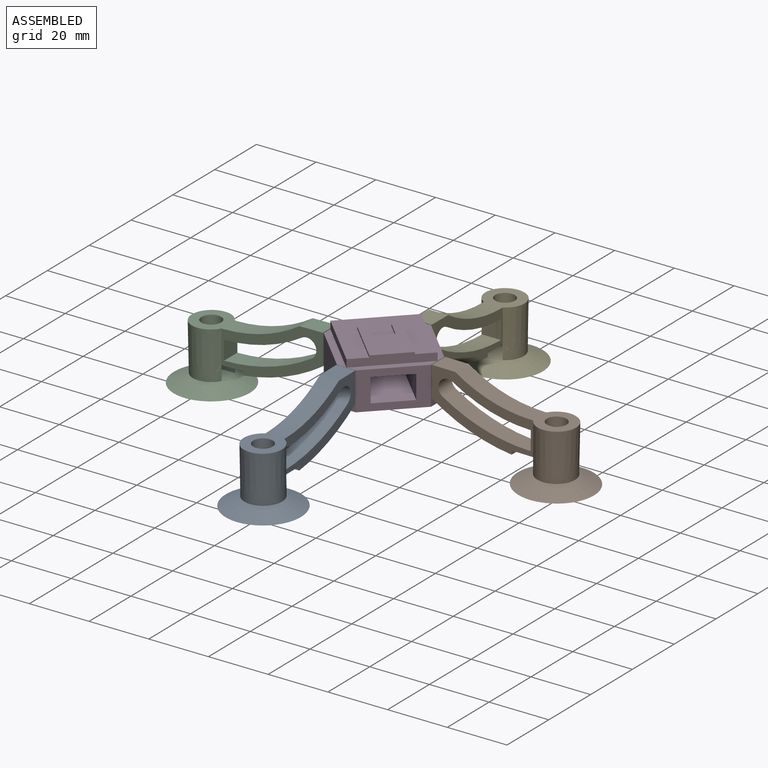
[diagram: assembled view]
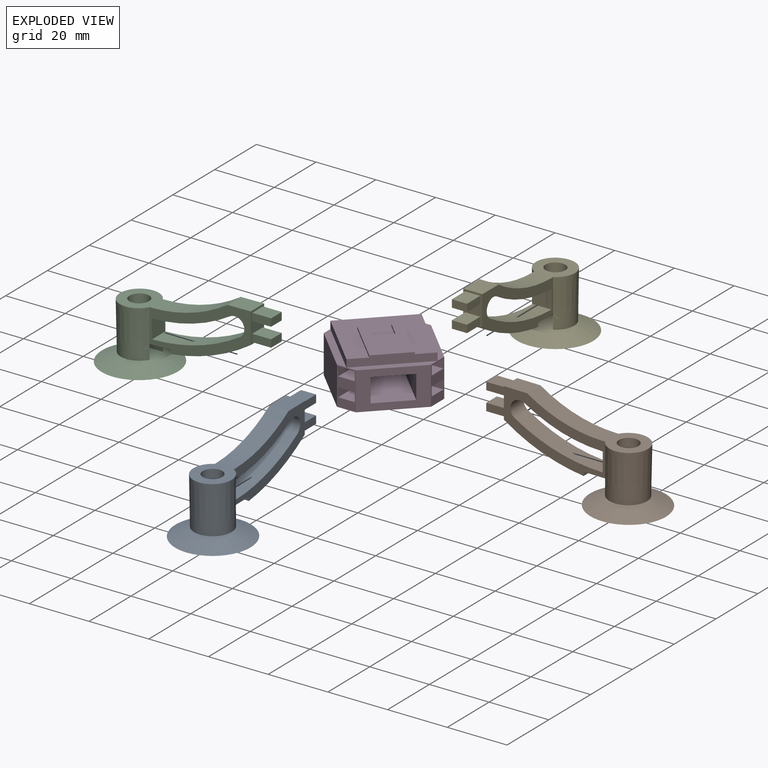
[diagram: exploded view]
GUIDED TOUR — MATED ASSEMBLY (Onshape document 2c69b0f62aaf6b4f8146618b, AutoMate assembly 2c69b0f62aaf6b4f8146618b_2bfa650f6eb8ac7df8bd2d8d_07a30dfd5c1788adb1af83a7_default)

This assembly has 5 components, labeled P0..P4 below (a component is one placed occurrence of a part; the same part can appear more than once), held together by 4 mates. A mate is a constraint between two components; its type names the relative motion it leaves free:
  FASTENED — locks the two components together rigidly (no relative motion).
Axis/direction vectors are unit vectors and 'through' points are millimeter coordinates, both in the assembly's world frame.

MATES
  1. FASTENED "Fastened 2": P4 <-> P3, direction (0.000, -1.000, 0.000) through (0.14, 12.86, 2.91) mm
  2. FASTENED "Fastened 4": P0 <-> P3, direction (0.000, 1.000, 0.000) through (0.01, -10.87, 2.91) mm
  3. FASTENED "Fastened 3": P1 <-> P3, direction (-1.000, 0.000, 0.000) through (11.94, 1.06, 2.91) mm
  4. FASTENED "Fastened 1": P2 <-> P3, direction (1.000, 0.000, 0.000) through (-11.79, 0.93, 2.91) mm

ASSEMBLY ORDER
  1. P3 — the base component [order heuristic]
  2. P0 [order heuristic]
  3. P1 [order heuristic]
  4. P2 [order heuristic]
  5. P4 [order heuristic]
Order-tag legend:
  [order heuristic] — this assembly is geometrically interlocked (no collision-free removal order exists), so components are listed in mate-graph order; insertion feasibility is not verified.

Of the 5 components, 1 carries the full construction recipe — the FeatureScript program that regenerates the part's solid from scratch; the rest are supplied as boundary geometry only.
Each toured component is shown spotlighted twice — in the assembled view, then in the exploded view, where a leader line traces a displaced component back to its assembled socket (saturated green if recipe-attached, orange if geometry-only; every other component desaturated gray) — followed by its recipe or geometry summary and the mates that hold it.
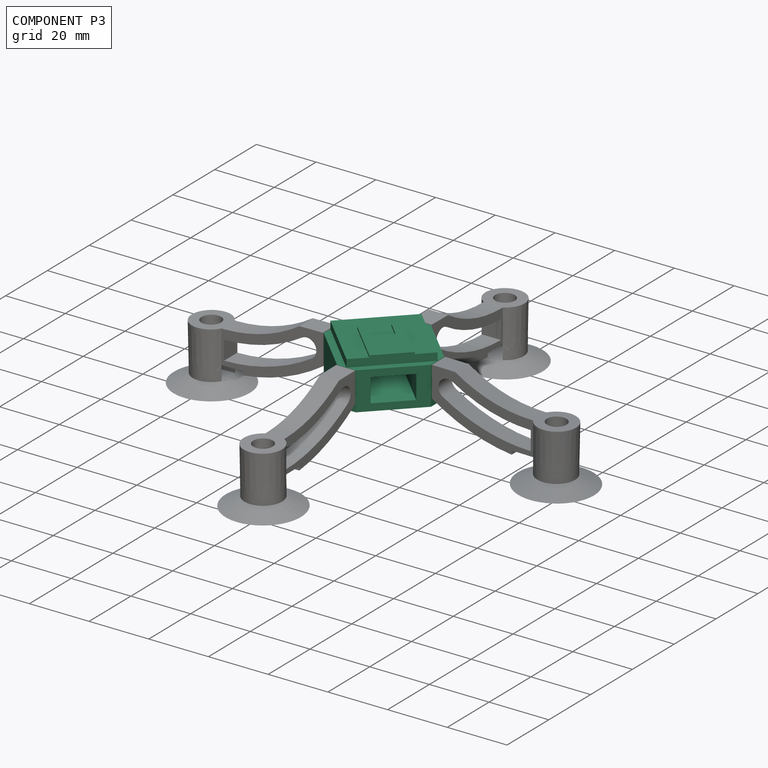
[diagram: component P3 — assembled]
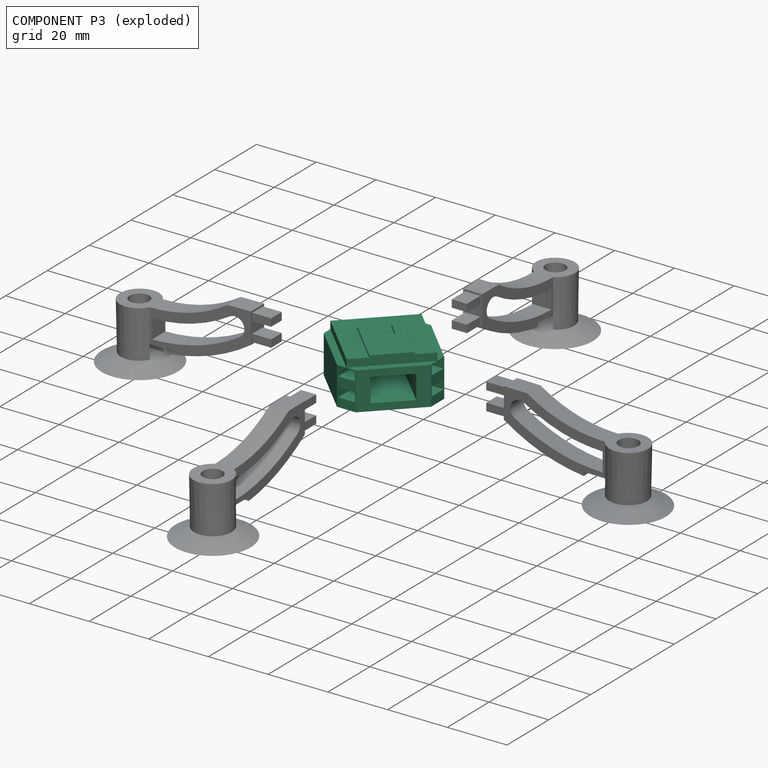
[diagram: component P3 — exploded]
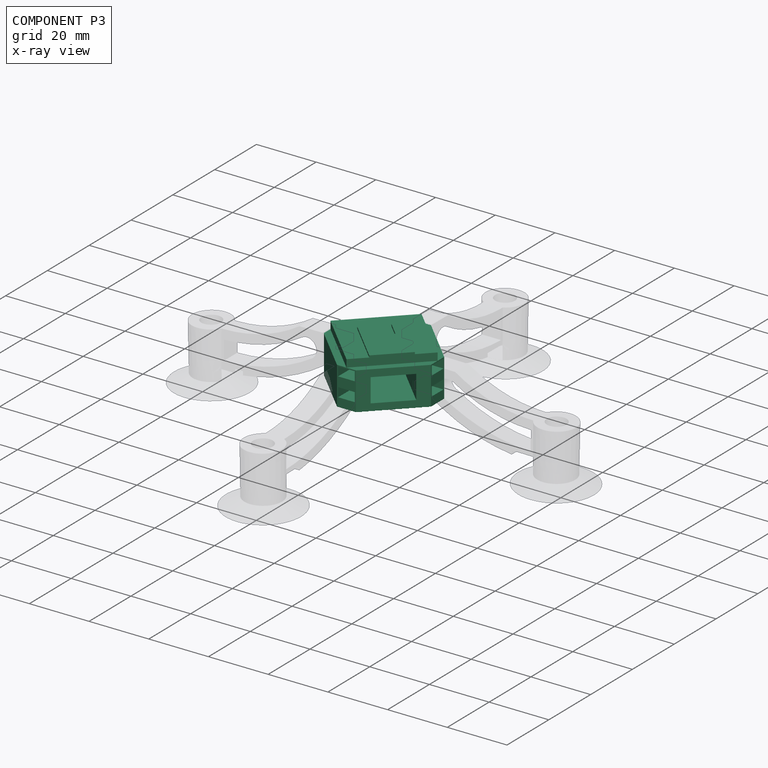
[diagram: component P3 — x-ray view]
COMPONENT P3 — recipe-attached (CADFS 00175159, mesh-verified: the recipe's output STEP matches this component's geometry to below the mesh-comparison resolution (tessellation chordal tolerance ~0.0798 mm)).
Held by: FASTENED mate "Fastened 2" to P4; FASTENED mate "Fastened 4" to P0; FASTENED mate "Fastened 3" to P1; FASTENED mate "Fastened 1" to P2.
Construction recipe (FeatureScript — the CAD program that rebuilds this solid; sketch coordinates are in the units given by the * unit suffixes, e.g. mm):

FeatureScript 1511;
import(path : "onshape/std/geometry.fs", version : "1511.0");
import(path : "onshape/std/common.fs", version : "1511.0");
const mm = millimeter;
const VERTEX = EntityType.VERTEX;
const EDGE = EntityType.EDGE;
const FACE = EntityType.FACE;
const BODY = EntityType.BODY;
function v(x, y){return vector(x, y);}
function OD(order){return orderDisambiguation(order);}
function OSD(set){return originalSetDisambiguation(set);}
function TD(topology){return topologyDisambiguation(topology);}
function TDD(query){return trueDependencyDisambiguation(query);}
function sQuery(a, b, c) {return sketchEntityQuery(a, b, c);}

annotation { "Feature Type Name" : "Feature", "Feature Type Description" : "" }
export const myFeature = defineFeature(function(context is Context, id is Id, definition is map)
    precondition{}
    {
        {
            var Q0;
            Q0=qCreatedBy(makeId("Top.planeOp"),FACE);
            var sketch = newSketch(context, id + "F0", { "sketchPlane" : qUnion([Q0])});
            skLineSegment(sketch, "E0.bottom", {"start": v(-17.96, 17.96) * mm, "end": v(17.96, 17.96) * mm});
            skLineSegment(sketch, "E0.top", {"start": v(-17.96, -17.96) * mm, "end": v(17.96, -17.96) * mm});
            skLineSegment(sketch, "E0.left", {"start": v(-17.96, 17.96) * mm, "end": v(-17.96, -17.96) * mm});
            skLineSegment(sketch, "E0.right", {"start": v(17.96, 17.96) * mm, "end": v(17.96, -17.96) * mm});
            skPoint(sketch, "E0.middle", {"position": v(0, 0) * mm});
            skPoint(sketch, "E1", {"position": v(-17.96, 3.17) * mm});
            skPoint(sketch, "E2", {"position": v(-17.96, -3.18) * mm});
            skPoint(sketch, "E3", {"position": v(-17.96, 0) * mm});
            skPoint(sketch, "E4", {"position": v(0, 17.96) * mm});
            skPoint(sketch, "E5", {"position": v(-3.17, 17.96) * mm});
            skPoint(sketch, "E6", {"position": v(3.18, 17.96) * mm});
            skPoint(sketch, "E7", {"position": v(17.96, 0) * mm});
            skPoint(sketch, "E8", {"position": v(17.96, 3.17) * mm});
            skPoint(sketch, "E9", {"position": v(17.96, -3.18) * mm});
            skPoint(sketch, "E10", {"position": v(0, -17.96) * mm});
            skPoint(sketch, "E11", {"position": v(3.18, -17.96) * mm});
            skPoint(sketch, "E12", {"position": v(-3.17, -17.96) * mm});
            skLineSegment(sketch, "E13", {"start": v(-17.96, 3.17) * mm, "end": v(-3.17, 17.96) * mm});
            skLineSegment(sketch, "E14", {"start": v(3.18, 17.96) * mm, "end": v(17.96, 3.17) * mm});
            skLineSegment(sketch, "E15", {"start": v(17.96, -3.18) * mm, "end": v(3.18, -17.96) * mm});
            skLineSegment(sketch, "E16", {"start": v(-17.96, -3.18) * mm, "end": v(-3.17, -17.96) * mm});
            skLineSegment(sketch, "E17", {"start": v(0, 0) * mm, "end": v(-8.98, 8.98) * mm});
            skLineSegment(sketch, "E18", {"start": v(0, 0) * mm, "end": v(8.98, 8.98) * mm});
            skLineSegment(sketch, "E19", {"start": v(0, 0) * mm, "end": v(8.98, -8.98) * mm});
            skLineSegment(sketch, "E20", {"start": v(0, 0) * mm, "end": v(-8.98, -8.98) * mm});
            skLineSegment(sketch, "E21", {"start": v(-8.98, -8.98) * mm, "end": v(0, -17.96) * mm});
            skLineSegment(sketch, "E22", {"start": v(0, -17.96) * mm, "end": v(8.98, -8.98) * mm});
            skLineSegment(sketch, "E23", {"start": v(-8.98, 8.98) * mm, "end": v(-17.96, 0) * mm});
            skLineSegment(sketch, "E24", {"start": v(-17.96, 0) * mm, "end": v(-8.98, -8.98) * mm});
            skLineSegment(sketch, "E25", {"start": v(-8.98, 8.98) * mm, "end": v(0, 17.96) * mm});
            skLineSegment(sketch, "E26", {"start": v(0, 17.96) * mm, "end": v(8.98, 8.98) * mm});
            skLineSegment(sketch, "E27", {"start": v(8.98, 8.98) * mm, "end": v(17.96, 0) * mm});
            skLineSegment(sketch, "E28", {"start": v(17.96, 0) * mm, "end": v(8.98, -8.98) * mm});
            skSolve(sketch);
        }
        {
            var Q0;
            Q0=makeQuery(id+"F0.imprint","IMPRINT",FACE,{"disambiguationData":[TD([[makeQuery(id+"F0.imprint","IMPRINT",EDGE,{"derivedFrom":sQuery(id+"F0.wireOp",EDGE,"E17")}),-1.0]])]});
            var Q1;
            Q1=makeQuery(id+"F0.imprint","IMPRINT",FACE,{"disambiguationData":[TD([[makeQuery(id+"F0.imprint","IMPRINT",EDGE,{"derivedFrom":sQuery(id+"F0.wireOp",EDGE,"E18")}),-1.0]])]});
            var Q2;
            Q2=makeQuery(id+"F0.imprint","IMPRINT",FACE,{"disambiguationData":[TD([[makeQuery(id+"F0.imprint","IMPRINT",EDGE,{"derivedFrom":sQuery(id+"F0.wireOp",EDGE,"E19")}),-1.0]])]});
            var Q3;
            Q3=makeQuery(id+"F0.imprint","IMPRINT",FACE,{"disambiguationData":[TD([[makeQuery(id+"F0.imprint","IMPRINT",EDGE,{"derivedFrom":sQuery(id+"F0.wireOp",EDGE,"E17")}),1.0]])]});
            extrude(context, id + "F1", {"entities" : qUnion([Q0, Q1, Q2, Q3]), "depth" : 15.24 * mm});
        }
        {
            var Q0;
            {var subQ1=sQuery(id+"F0.wireOp",EDGE,"E13");Q0=makeQuery(id+"F0.imprint","IMPRINT",FACE,{"disambiguationData":[TD([[makeQuery(id+"F0.imprint","IMPRINT",EDGE,{"derivedFrom":subQ1}),-1.0]])]});}
            var Q1;
            {var subQ1=sQuery(id+"F0.wireOp",EDGE,"E16");Q1=makeQuery(id+"F0.imprint","IMPRINT",FACE,{"disambiguationData":[TD([[makeQuery(id+"F0.imprint","IMPRINT",EDGE,{"derivedFrom":subQ1}),1.0]])]});}
            var Q2;
            {var subQ1=sQuery(id+"F0.wireOp",EDGE,"E15");Q2=makeQuery(id+"F0.imprint","IMPRINT",FACE,{"disambiguationData":[TD([[makeQuery(id+"F0.imprint","IMPRINT",EDGE,{"derivedFrom":subQ1}),-1.0]])]});}
            var Q3;
            {var subQ1=sQuery(id+"F0.wireOp",EDGE,"E14");Q3=makeQuery(id+"F0.imprint","IMPRINT",FACE,{"disambiguationData":[TD([[makeQuery(id+"F0.imprint","IMPRINT",EDGE,{"derivedFrom":subQ1}),-1.0]])]});}
            extrude(context, id + "F2", {"entities" : qUnion([Q0, Q1, Q2, Q3]), "operationType" : NewBodyOperationType.ADD, "depth" : 12.7 * mm});
        }
        {
            var Q0;
            Q0=makeQuery(id+"F2.opExtrude","CAP_FACE",FACE,{"disambiguationData":[OSD([sQuery(id+"F0.wireOp",EDGE,"E21"),sQuery(id+"F0.wireOp",EDGE,"E22"),sQuery(id+"F0.wireOp",EDGE,"E23"),sQuery(id+"F0.wireOp",EDGE,"E24"),sQuery(id+"F0.wireOp",EDGE,"E25"),sQuery(id+"F0.wireOp",EDGE,"E26"),sQuery(id+"F0.wireOp",EDGE,"E27"),sQuery(id+"F0.wireOp",EDGE,"E28")])],"isStart":false});
            var sketch = newSketch(context, id + "F3", { "sketchPlane" : qUnion([Q0])});
            skPoint(sketch, "E29", {"position": v(8.98, -8.98) * mm});
            skLineSegment(sketch, "E30", {"start": v(8.98, -8.98) * mm, "end": v(13.47, -4.5) * mm});
            skLineSegment(sketch, "E31", {"start": v(13.47, -4.5) * mm, "end": v(0, 8.98) * mm});
            skLineSegment(sketch, "E32", {"start": v(0, 8.98) * mm, "end": v(-2.25, 6.74) * mm});
            skLineSegment(sketch, "E33", {"start": v(-2.25, 6.74) * mm, "end": v(2.25, 2.25) * mm});
            skLineSegment(sketch, "E34", {"start": v(8.98, -8.98) * mm, "end": v(0, 0) * mm});
            skLineSegment(sketch, "E35", {"start": v(0, 0) * mm, "end": v(2.25, 2.25) * mm});
            skLineSegment(sketch, "E36.MirrorCS", {"start": v(0, 0) * mm, "end": v(-2.25, -2.25) * mm});
            skLineSegment(sketch, "E37.MirrorCS", {"start": v(-6.74, 2.25) * mm, "end": v(-2.25, -2.25) * mm});
            skLineSegment(sketch, "E38.MirrorCS", {"start": v(-8.98, 0) * mm, "end": v(-6.74, 2.25) * mm});
            skLineSegment(sketch, "E39.MirrorCS", {"start": v(4.5, -13.47) * mm, "end": v(-8.98, 0) * mm});
            skLineSegment(sketch, "E40.MirrorCS", {"start": v(8.98, -8.98) * mm, "end": v(4.5, -13.47) * mm});
            skSolve(sketch);
        }
        {
            var Q0;
            {var subQ0=sQuery(id+"F0.wireOp",EDGE,"E0.left");Q0=makeQuery(id+"F2.boolean.opBoolean","MERGE",FACE,{"derivedFrom":[makeQuery(id+"F2.opExtrude","SWEPT_FACE",FACE,{"disambiguationData":[OSD([subQ0]),TDD([makeQuery(id+"F0.imprint","IMPRINT",EDGE,{"disambiguationData":[TD([[makeQuery(id+"F0.imprint","INTERSECT",VERTEX,{"derivedFrom":[subQ0,sQuery(id+"F0.wireOp",EDGE,"E13")]}),-1.0]])],"derivedFrom":subQ0})])]}),makeQuery(id+"F2.opExtrude","SWEPT_FACE",FACE,{"disambiguationData":[OSD([subQ0]),TDD([makeQuery(id+"F0.imprint","IMPRINT",EDGE,{"disambiguationData":[TD([[makeQuery(id+"F0.imprint","INTERSECT",VERTEX,{"derivedFrom":[subQ0,sQuery(id+"F0.wireOp",EDGE,"E16")]}),1.0]])],"derivedFrom":subQ0})])]})]});}
            var sketch = newSketch(context, id + "F4", { "sketchPlane" : qUnion([Q0])});
            skPoint(sketch, "E41", {"position": v(0, 7.62) * mm});
            skPoint(sketch, "E42.positionSnap0", {"position": v(0, 5.33) * mm});
            skPoint(sketch, "E42.positionSnap1", {"position": v(3.3, 7.62) * mm});
            skLineSegment(sketch, "E43.bottom", {"start": v(-2.54, 12.07) * mm, "end": v(2.54, 12.07) * mm});
            skLineSegment(sketch, "E43.top", {"start": v(-2.54, 3.17) * mm, "end": v(2.54, 3.17) * mm});
            skLineSegment(sketch, "E44", {"start": v(-2.54, 9.58) * mm, "end": v(2.54, 9.58) * mm});
            skLineSegment(sketch, "E45", {"start": v(-2.54, 5.83) * mm, "end": v(2.54, 5.83) * mm});
            skLineSegment(sketch, "E46", {"start": v(-2.54, 12.07) * mm, "end": v(-2.54, 9.58) * mm});
            skLineSegment(sketch, "E47", {"start": v(2.54, 12.07) * mm, "end": v(2.54, 9.58) * mm});
            skLineSegment(sketch, "E48", {"start": v(-2.54, 5.83) * mm, "end": v(-2.54, 3.17) * mm});
            skLineSegment(sketch, "E49", {"start": v(2.54, 5.83) * mm, "end": v(2.54, 3.17) * mm});
            skPoint(sketch, "E50", {"position": v(0, 10.82) * mm});
            skPoint(sketch, "E50.positionSnap0", {"position": v(-2.54, 10.82) * mm});
            skPoint(sketch, "E50.positionSnap1", {"position": v(0, 9.58) * mm});
            skPoint(sketch, "E51", {"position": v(0, 4.5) * mm});
            skPoint(sketch, "E51.positionSnap0", {"position": v(-2.54, 4.5) * mm});
            skPoint(sketch, "E51.positionSnap1", {"position": v(0, 3.17) * mm});
            skLineSegment(sketch, "E52.bottom", {"start": v(-2.8, 6.03) * mm, "end": v(2.8, 6.03) * mm});
            skLineSegment(sketch, "E52.top", {"start": v(-2.8, 2.98) * mm, "end": v(2.8, 2.98) * mm});
            skLineSegment(sketch, "E52.left", {"start": v(-2.8, 6.03) * mm, "end": v(-2.8, 2.98) * mm});
            skLineSegment(sketch, "E52.right", {"start": v(2.8, 6.03) * mm, "end": v(2.8, 2.98) * mm});
            skLineSegment(sketch, "E53.bottom", {"start": v(-2.8, 12.35) * mm, "end": v(2.8, 12.35) * mm});
            skLineSegment(sketch, "E53.top", {"start": v(-2.8, 9.3) * mm, "end": v(2.8, 9.3) * mm});
            skLineSegment(sketch, "E53.left", {"start": v(-2.8, 12.35) * mm, "end": v(-2.8, 9.3) * mm});
            skLineSegment(sketch, "E53.right", {"start": v(2.8, 12.35) * mm, "end": v(2.8, 9.3) * mm});
            skLineSegment(sketch, "E54", {"start": v(0, 7.62) * mm, "end": v(0, 0) * mm});
            skSolve(sketch);
        }
        {
            var Q0;
            Q0=makeQuery(id+"F4.imprint","IMPRINT",FACE,{"disambiguationData":[TD([[makeQuery(id+"F4.imprint","IMPRINT",EDGE,{"derivedFrom":sQuery(id+"F4.wireOp",EDGE,"E43.bottom")}),1.0]])]});
            var Q1;
            Q1=makeQuery(id+"F4.imprint","IMPRINT",FACE,{"disambiguationData":[TD([[makeQuery(id+"F4.imprint","IMPRINT",EDGE,{"derivedFrom":sQuery(id+"F4.wireOp",EDGE,"E43.bottom")}),-1.0]])]});
            var Q2;
            Q2=makeQuery(id+"F4.imprint","IMPRINT",FACE,{"disambiguationData":[TD([[makeQuery(id+"F4.imprint","IMPRINT",EDGE,{"derivedFrom":sQuery(id+"F4.wireOp",EDGE,"E43.top")}),1.0]])]});
            var Q3;
            {var subQ4=sQuery(id+"F4.wireOp",EDGE,"E48");Q3=makeQuery(id+"F4.imprint","IMPRINT",FACE,{"disambiguationData":[TD([[makeQuery(id+"F4.imprint","IMPRINT",EDGE,{"derivedFrom":subQ4}),-1.0]])]});}
            var Q4;
            {var subQ8=sQuery(id+"F4.wireOp",EDGE,"E49");Q4=makeQuery(id+"F4.imprint","IMPRINT",FACE,{"disambiguationData":[TD([[makeQuery(id+"F4.imprint","IMPRINT",EDGE,{"derivedFrom":subQ8}),1.0]])]});}
            extrude(context, id + "F5", {"entities" : qUnion([Q0, Q1, Q2, Q3, Q4]), "operationType" : NewBodyOperationType.REMOVE, "oppositeDirection" : true, "depth" : 6.6 * mm});
        }
        {
            var Q0;
            {var subQ0=sQuery(id+"F0.wireOp",EDGE,"E0.right");Q0=makeQuery(id+"F2.boolean.opBoolean","MERGE",FACE,{"derivedFrom":[makeQuery(id+"F2.opExtrude","SWEPT_FACE",FACE,{"disambiguationData":[OSD([subQ0]),TDD([makeQuery(id+"F0.imprint","IMPRINT",EDGE,{"disambiguationData":[TD([[makeQuery(id+"F0.imprint","INTERSECT",VERTEX,{"derivedFrom":[subQ0,sQuery(id+"F0.wireOp",EDGE,"E14")]}),-1.0]])],"derivedFrom":subQ0})])]}),makeQuery(id+"F2.opExtrude","SWEPT_FACE",FACE,{"disambiguationData":[OSD([subQ0]),TDD([makeQuery(id+"F0.imprint","IMPRINT",EDGE,{"disambiguationData":[TD([[makeQuery(id+"F0.imprint","INTERSECT",VERTEX,{"derivedFrom":[subQ0,sQuery(id+"F0.wireOp",EDGE,"E15")]}),1.0]])],"derivedFrom":subQ0})])]})]});}
            var sketch = newSketch(context, id + "F6", { "sketchPlane" : qUnion([Q0])});
            skPoint(sketch, "E55", {"position": v(0, 7.62) * mm});
            skPoint(sketch, "E56.positionSnap0", {"position": v(0, 4.31) * mm});
            skPoint(sketch, "E56.positionSnap1", {"position": v(3.3, 7.62) * mm});
            skLineSegment(sketch, "E57.bottom", {"start": v(-2.54, 12.07) * mm, "end": v(2.54, 12.07) * mm});
            skLineSegment(sketch, "E57.top", {"start": v(-2.54, 3.18) * mm, "end": v(2.54, 3.18) * mm});
            skLineSegment(sketch, "E58", {"start": v(-2.54, 9.58) * mm, "end": v(2.54, 9.58) * mm});
            skLineSegment(sketch, "E59", {"start": v(-2.54, 5.83) * mm, "end": v(2.54, 5.83) * mm});
            skLineSegment(sketch, "E60", {"start": v(-2.54, 12.07) * mm, "end": v(-2.54, 9.58) * mm});
            skLineSegment(sketch, "E61", {"start": v(2.54, 12.07) * mm, "end": v(2.54, 9.58) * mm});
            skLineSegment(sketch, "E62", {"start": v(-2.54, 5.83) * mm, "end": v(-2.54, 3.18) * mm});
            skLineSegment(sketch, "E63", {"start": v(2.54, 5.83) * mm, "end": v(2.54, 3.18) * mm});
            skPoint(sketch, "E64", {"position": v(0, 10.82) * mm});
            skPoint(sketch, "E64.positionSnap0", {"position": v(-2.54, 10.82) * mm});
            skPoint(sketch, "E64.positionSnap1", {"position": v(0, 9.58) * mm});
            skPoint(sketch, "E65", {"position": v(0, 4.5) * mm});
            skPoint(sketch, "E65.positionSnap0", {"position": v(-2.54, 4.5) * mm});
            skPoint(sketch, "E65.positionSnap1", {"position": v(0, 3.18) * mm});
            skLineSegment(sketch, "E66.bottom", {"start": v(-2.8, 6.03) * mm, "end": v(2.8, 6.03) * mm});
            skLineSegment(sketch, "E66.top", {"start": v(-2.8, 2.98) * mm, "end": v(2.8, 2.98) * mm});
            skLineSegment(sketch, "E66.left", {"start": v(-2.8, 6.03) * mm, "end": v(-2.8, 2.98) * mm});
            skLineSegment(sketch, "E66.right", {"start": v(2.8, 6.03) * mm, "end": v(2.8, 2.98) * mm});
            skLineSegment(sketch, "E67.bottom", {"start": v(-2.8, 12.35) * mm, "end": v(2.8, 12.35) * mm});
            skLineSegment(sketch, "E67.top", {"start": v(-2.8, 9.3) * mm, "end": v(2.8, 9.3) * mm});
            skLineSegment(sketch, "E67.left", {"start": v(-2.8, 12.35) * mm, "end": v(-2.8, 9.3) * mm});
            skLineSegment(sketch, "E67.right", {"start": v(2.8, 12.35) * mm, "end": v(2.8, 9.3) * mm});
            skLineSegment(sketch, "E68", {"start": v(0, 7.62) * mm, "end": v(0, 0) * mm});
            skSolve(sketch);
        }
        {
            var Q0;
            Q0=makeQuery(id+"F6.imprint","IMPRINT",FACE,{"disambiguationData":[TD([[makeQuery(id+"F6.imprint","IMPRINT",EDGE,{"derivedFrom":sQuery(id+"F6.wireOp",EDGE,"E57.bottom")}),-1.0]])]});
            var Q1;
            {var subQ0=sQuery(id+"F6.wireOp",EDGE,"E63");Q1=makeQuery(id+"F6.imprint","IMPRINT",FACE,{"disambiguationData":[TD([[makeQuery(id+"F6.imprint","IMPRINT",EDGE,{"derivedFrom":subQ0}),-1.0]])]});}
            var Q2;
            {var subQ0=sQuery(id+"F6.wireOp",EDGE,"E62");Q2=makeQuery(id+"F6.imprint","IMPRINT",FACE,{"disambiguationData":[TD([[makeQuery(id+"F6.imprint","IMPRINT",EDGE,{"derivedFrom":subQ0}),1.0]])]});}
            var Q3;
            {var subQ4=sQuery(id+"F6.wireOp",EDGE,"E62");Q3=makeQuery(id+"F6.imprint","IMPRINT",FACE,{"disambiguationData":[TD([[makeQuery(id+"F6.imprint","IMPRINT",EDGE,{"derivedFrom":subQ4}),-1.0]])]});}
            var Q4;
            {var subQ4=sQuery(id+"F6.wireOp",EDGE,"E63");Q4=makeQuery(id+"F6.imprint","IMPRINT",FACE,{"disambiguationData":[TD([[makeQuery(id+"F6.imprint","IMPRINT",EDGE,{"derivedFrom":subQ4}),1.0]])]});}
            var Q5;
            Q5=makeQuery(id+"F6.imprint","IMPRINT",FACE,{"disambiguationData":[TD([[makeQuery(id+"F6.imprint","IMPRINT",EDGE,{"derivedFrom":sQuery(id+"F6.wireOp",EDGE,"E57.bottom")}),1.0]])]});
            extrude(context, id + "F7", {"entities" : qUnion([Q0, Q1, Q2, Q3, Q4, Q5]), "operationType" : NewBodyOperationType.REMOVE, "oppositeDirection" : true, "depth" : 6.6 * mm});
        }
        {
            var Q0;
            {var subQ0=sQuery(id+"F0.wireOp",EDGE,"E0.top");Q0=makeQuery(id+"F2.boolean.opBoolean","MERGE",FACE,{"derivedFrom":[makeQuery(id+"F2.opExtrude","SWEPT_FACE",FACE,{"disambiguationData":[OSD([subQ0]),TDD([makeQuery(id+"F0.imprint","IMPRINT",EDGE,{"disambiguationData":[TD([[makeQuery(id+"F0.imprint","INTERSECT",VERTEX,{"derivedFrom":[subQ0,sQuery(id+"F0.wireOp",EDGE,"E16")]}),-1.0]])],"derivedFrom":subQ0})])]}),makeQuery(id+"F2.opExtrude","SWEPT_FACE",FACE,{"disambiguationData":[OSD([subQ0]),TDD([makeQuery(id+"F0.imprint","IMPRINT",EDGE,{"disambiguationData":[TD([[makeQuery(id+"F0.imprint","INTERSECT",VERTEX,{"derivedFrom":[subQ0,sQuery(id+"F0.wireOp",EDGE,"E15")]}),1.0]])],"derivedFrom":subQ0})])]})]});}
            var sketch = newSketch(context, id + "F8", { "sketchPlane" : qUnion([Q0])});
            skPoint(sketch, "E69", {"position": v(0, 7.62) * mm});
            skPoint(sketch, "E69.positionSnap0", {"position": v(-25.4, 7.62) * mm});
            skPoint(sketch, "E70.positionSnap0", {"position": v(0, 5.76) * mm});
            skPoint(sketch, "E70.positionSnap1", {"position": v(3.3, 7.62) * mm});
            skLineSegment(sketch, "E71.bottom", {"start": v(-2.54, 12.07) * mm, "end": v(2.54, 12.07) * mm});
            skLineSegment(sketch, "E71.top", {"start": v(-2.54, 3.17) * mm, "end": v(2.54, 3.17) * mm});
            skLineSegment(sketch, "E72", {"start": v(-2.54, 9.58) * mm, "end": v(2.54, 9.58) * mm});
            skLineSegment(sketch, "E73", {"start": v(-2.54, 5.83) * mm, "end": v(2.54, 5.83) * mm});
            skLineSegment(sketch, "E74", {"start": v(-2.54, 12.07) * mm, "end": v(-2.54, 9.58) * mm});
            skLineSegment(sketch, "E75", {"start": v(2.54, 12.07) * mm, "end": v(2.54, 9.58) * mm});
            skLineSegment(sketch, "E76", {"start": v(-2.54, 5.83) * mm, "end": v(-2.54, 3.17) * mm});
            skLineSegment(sketch, "E77", {"start": v(2.54, 5.83) * mm, "end": v(2.54, 3.17) * mm});
            skPoint(sketch, "E78", {"position": v(0, 10.82) * mm});
            skPoint(sketch, "E78.positionSnap0", {"position": v(-2.54, 10.82) * mm});
            skPoint(sketch, "E78.positionSnap1", {"position": v(0, 9.58) * mm});
            skPoint(sketch, "E79", {"position": v(0, 4.5) * mm});
            skPoint(sketch, "E79.positionSnap0", {"position": v(-2.54, 4.5) * mm});
            skPoint(sketch, "E79.positionSnap1", {"position": v(0, 3.17) * mm});
            skLineSegment(sketch, "E80.bottom", {"start": v(-2.8, 6.03) * mm, "end": v(2.8, 6.03) * mm});
            skLineSegment(sketch, "E80.top", {"start": v(-2.8, 2.98) * mm, "end": v(2.8, 2.98) * mm});
            skLineSegment(sketch, "E80.left", {"start": v(-2.8, 6.03) * mm, "end": v(-2.8, 2.98) * mm});
            skLineSegment(sketch, "E80.right", {"start": v(2.8, 6.03) * mm, "end": v(2.8, 2.98) * mm});
            skLineSegment(sketch, "E81.bottom", {"start": v(-2.8, 12.35) * mm, "end": v(2.8, 12.35) * mm});
            skLineSegment(sketch, "E81.top", {"start": v(-2.8, 9.3) * mm, "end": v(2.8, 9.3) * mm});
            skLineSegment(sketch, "E81.left", {"start": v(-2.8, 12.35) * mm, "end": v(-2.8, 9.3) * mm});
            skLineSegment(sketch, "E81.right", {"start": v(2.8, 12.35) * mm, "end": v(2.8, 9.3) * mm});
            skLineSegment(sketch, "E82", {"start": v(0, 7.62) * mm, "end": v(0, 0) * mm});
            skSolve(sketch);
        }
        {
            var Q0;
            Q0=makeQuery(id+"F8.imprint","IMPRINT",FACE,{"disambiguationData":[TD([[makeQuery(id+"F8.imprint","IMPRINT",EDGE,{"derivedFrom":sQuery(id+"F8.wireOp",EDGE,"E71.bottom")}),1.0]])]});
            var Q1;
            {var subQ4=sQuery(id+"F8.wireOp",EDGE,"E77");Q1=makeQuery(id+"F8.imprint","IMPRINT",FACE,{"disambiguationData":[TD([[makeQuery(id+"F8.imprint","IMPRINT",EDGE,{"derivedFrom":subQ4}),1.0]])]});}
            var Q2;
            {var subQ4=sQuery(id+"F8.wireOp",EDGE,"E76");Q2=makeQuery(id+"F8.imprint","IMPRINT",FACE,{"disambiguationData":[TD([[makeQuery(id+"F8.imprint","IMPRINT",EDGE,{"derivedFrom":subQ4}),-1.0]])]});}
            var Q3;
            {var subQ0=sQuery(id+"F8.wireOp",EDGE,"E76");Q3=makeQuery(id+"F8.imprint","IMPRINT",FACE,{"disambiguationData":[TD([[makeQuery(id+"F8.imprint","IMPRINT",EDGE,{"derivedFrom":subQ0}),1.0]])]});}
            var Q4;
            Q4=makeQuery(id+"F8.imprint","IMPRINT",FACE,{"disambiguationData":[TD([[makeQuery(id+"F8.imprint","IMPRINT",EDGE,{"derivedFrom":sQuery(id+"F8.wireOp",EDGE,"E71.bottom")}),-1.0]])]});
            var Q5;
            {var subQ0=sQuery(id+"F8.wireOp",EDGE,"E77");Q5=makeQuery(id+"F8.imprint","IMPRINT",FACE,{"disambiguationData":[TD([[makeQuery(id+"F8.imprint","IMPRINT",EDGE,{"derivedFrom":subQ0}),-1.0]])]});}
            extrude(context, id + "F9", {"entities" : qUnion([Q0, Q1, Q2, Q3, Q4, Q5]), "operationType" : NewBodyOperationType.REMOVE, "oppositeDirection" : true, "depth" : 6.6 * mm});
        }
        {
            var Q0;
            Q0 = qSketchRegion(id + "F3", true);
            extrude(context, id + "F10", {"entities" : qUnion([Q0]), "operationType" : NewBodyOperationType.ADD, "depth" : 3.17 * mm});
        }
        {
            var Q0;
            {var subQ0=sQuery(id+"F0.wireOp",EDGE,"E0.bottom");Q0=makeQuery(id+"F2.boolean.opBoolean","MERGE",FACE,{"derivedFrom":[makeQuery(id+"F2.opExtrude","SWEPT_FACE",FACE,{"disambiguationData":[OSD([subQ0]),TDD([makeQuery(id+"F0.imprint","IMPRINT",EDGE,{"disambiguationData":[TD([[makeQuery(id+"F0.imprint","INTERSECT",VERTEX,{"derivedFrom":[subQ0,sQuery(id+"F0.wireOp",EDGE,"E13")]}),-1.0]])],"derivedFrom":subQ0})])]}),makeQuery(id+"F2.opExtrude","SWEPT_FACE",FACE,{"disambiguationData":[OSD([subQ0]),TDD([makeQuery(id+"F0.imprint","IMPRINT",EDGE,{"disambiguationData":[TD([[makeQuery(id+"F0.imprint","INTERSECT",VERTEX,{"derivedFrom":[subQ0,sQuery(id+"F0.wireOp",EDGE,"E14")]}),1.0]])],"derivedFrom":subQ0})])]})]});}
            var sketch = newSketch(context, id + "F11", { "sketchPlane" : qUnion([Q0])});
            skPoint(sketch, "E83", {"position": v(0, 7.62) * mm});
            skPoint(sketch, "E84.positionSnap0", {"position": v(0, 4.31) * mm});
            skPoint(sketch, "E84.positionSnap1", {"position": v(3.3, 7.62) * mm});
            skLineSegment(sketch, "E85.bottom", {"start": v(-2.54, 12.07) * mm, "end": v(2.54, 12.07) * mm});
            skLineSegment(sketch, "E85.top", {"start": v(-2.54, 3.18) * mm, "end": v(2.54, 3.18) * mm});
            skLineSegment(sketch, "E86", {"start": v(-2.54, 9.58) * mm, "end": v(2.54, 9.58) * mm});
            skLineSegment(sketch, "E87", {"start": v(-2.54, 5.83) * mm, "end": v(2.54, 5.83) * mm});
            skLineSegment(sketch, "E88", {"start": v(-2.54, 12.07) * mm, "end": v(-2.54, 9.58) * mm});
            skLineSegment(sketch, "E89", {"start": v(2.54, 12.07) * mm, "end": v(2.54, 9.58) * mm});
            skLineSegment(sketch, "E90", {"start": v(-2.54, 5.83) * mm, "end": v(-2.54, 3.18) * mm});
            skLineSegment(sketch, "E91", {"start": v(2.54, 5.83) * mm, "end": v(2.54, 3.18) * mm});
            skPoint(sketch, "E92", {"position": v(0, 10.82) * mm});
            skPoint(sketch, "E92.positionSnap0", {"position": v(-2.54, 10.82) * mm});
            skPoint(sketch, "E92.positionSnap1", {"position": v(0, 9.58) * mm});
            skPoint(sketch, "E93", {"position": v(0, 4.5) * mm});
            skPoint(sketch, "E93.positionSnap0", {"position": v(-2.54, 4.5) * mm});
            skPoint(sketch, "E93.positionSnap1", {"position": v(0, 3.18) * mm});
            skLineSegment(sketch, "E94.bottom", {"start": v(-2.8, 6.03) * mm, "end": v(2.8, 6.03) * mm});
            skLineSegment(sketch, "E94.top", {"start": v(-2.8, 2.98) * mm, "end": v(2.8, 2.98) * mm});
            skLineSegment(sketch, "E94.left", {"start": v(-2.8, 6.03) * mm, "end": v(-2.8, 2.98) * mm});
            skLineSegment(sketch, "E94.right", {"start": v(2.8, 6.03) * mm, "end": v(2.8, 2.98) * mm});
            skLineSegment(sketch, "E95.bottom", {"start": v(-2.8, 12.35) * mm, "end": v(2.8, 12.35) * mm});
            skLineSegment(sketch, "E95.top", {"start": v(-2.8, 9.3) * mm, "end": v(2.8, 9.3) * mm});
            skLineSegment(sketch, "E95.left", {"start": v(-2.8, 12.35) * mm, "end": v(-2.8, 9.3) * mm});
            skLineSegment(sketch, "E95.right", {"start": v(2.8, 12.35) * mm, "end": v(2.8, 9.3) * mm});
            skLineSegment(sketch, "E96", {"start": v(0, 7.62) * mm, "end": v(0, 0) * mm});
            skSolve(sketch);
        }
        {
            var Q0;
            Q0 = qSketchRegion(id + "F11", true);
            var Q1;
            {var subQ0=sQuery(id+"F11.wireOp",EDGE,"E90");Q1=makeQuery(id+"F11.imprint","IMPRINT",FACE,{"disambiguationData":[TD([[makeQuery(id+"F11.imprint","IMPRINT",EDGE,{"derivedFrom":subQ0}),1.0]])]});}
            var Q2;
            {var subQ0=sQuery(id+"F11.wireOp",EDGE,"E91");Q2=makeQuery(id+"F11.imprint","IMPRINT",FACE,{"disambiguationData":[TD([[makeQuery(id+"F11.imprint","IMPRINT",EDGE,{"derivedFrom":subQ0}),-1.0]])]});}
            var Q3;
            Q3=makeQuery(id+"F11.imprint","IMPRINT",FACE,{"disambiguationData":[TD([[makeQuery(id+"F11.imprint","IMPRINT",EDGE,{"derivedFrom":sQuery(id+"F11.wireOp",EDGE,"E85.bottom")}),-1.0]])]});
            extrude(context, id + "F12", {"entities" : qUnion([Q0, Q1, Q2, Q3]), "operationType" : NewBodyOperationType.REMOVE, "oppositeDirection" : true, "depth" : 6.6 * mm});
        }
        {
            var Q0;
            Q0=makeQuery(id+"F2.opExtrude","SWEPT_FACE",FACE,{"disambiguationData":[OSD([sQuery(id+"F0.wireOp",EDGE,"E13")])]});
            var sketch = newSketch(context, id + "F13", { "sketchPlane" : qUnion([Q0])});
            skLineSegment(sketch, "E97", {"start": v(0, 0) * mm, "end": v(0, 6.35) * mm});
            skPoint(sketch, "E97.endSnap0", {"position": v(0, 12.7) * mm});
            skLineSegment(sketch, "E98.bottom", {"start": v(-6.35, 10.32) * mm, "end": v(6.35, 10.32) * mm});
            skLineSegment(sketch, "E98.top", {"start": v(-6.35, 2.38) * mm, "end": v(6.35, 2.38) * mm});
            skLineSegment(sketch, "E98.left", {"start": v(-6.35, 10.32) * mm, "end": v(-6.35, 2.38) * mm});
            skLineSegment(sketch, "E98.right", {"start": v(6.35, 10.32) * mm, "end": v(6.35, 2.38) * mm});
            skPoint(sketch, "E98.middle", {"position": v(0, 6.35) * mm});
            skSolve(sketch);
        }
        {
            var Q0;
            Q0=makeQuery(id+"F13.imprint","IMPRINT",FACE,{"disambiguationData":[TD([[makeQuery(id+"F13.imprint","IMPRINT",EDGE,{"derivedFrom":sQuery(id+"F13.wireOp",EDGE,"E98.bottom")}),-1.0]])]});
            extrude(context, id + "F14", {"entities" : qUnion([Q0]), "operationType" : NewBodyOperationType.REMOVE, "oppositeDirection" : true, "depth" : 38.1 * mm});
        }
    });
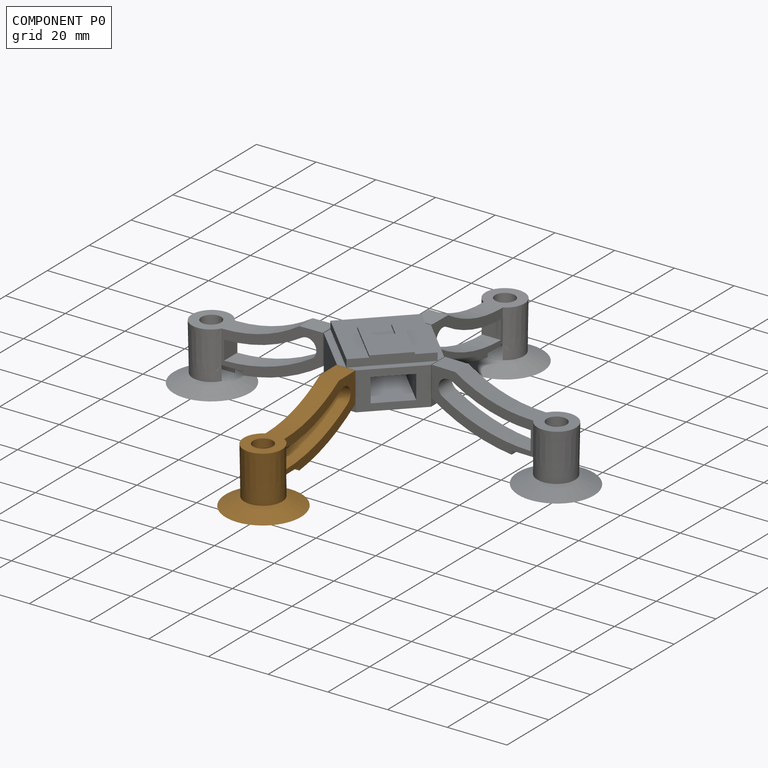
[diagram: component P0 — assembled]
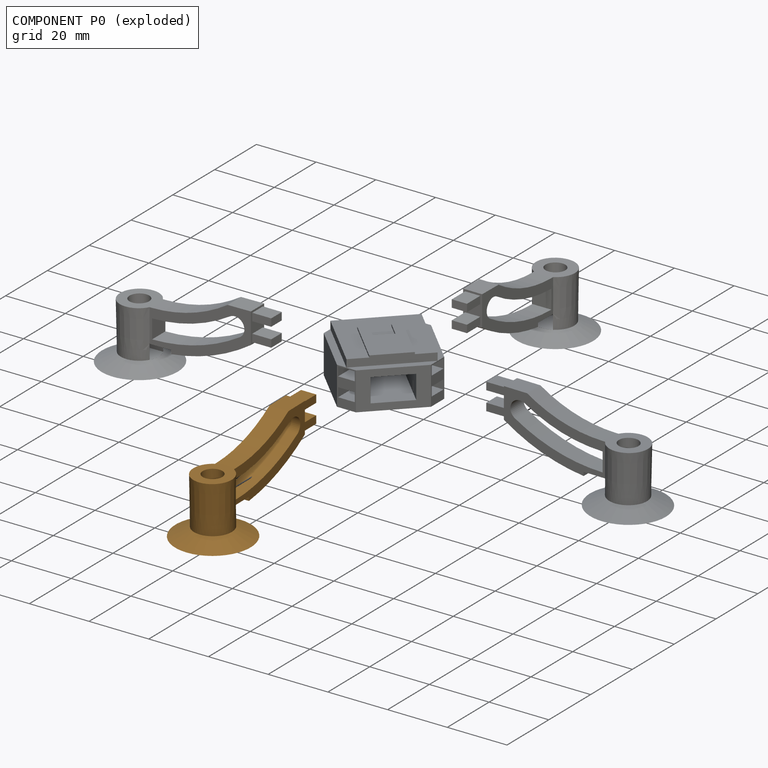
[diagram: component P0 — exploded]
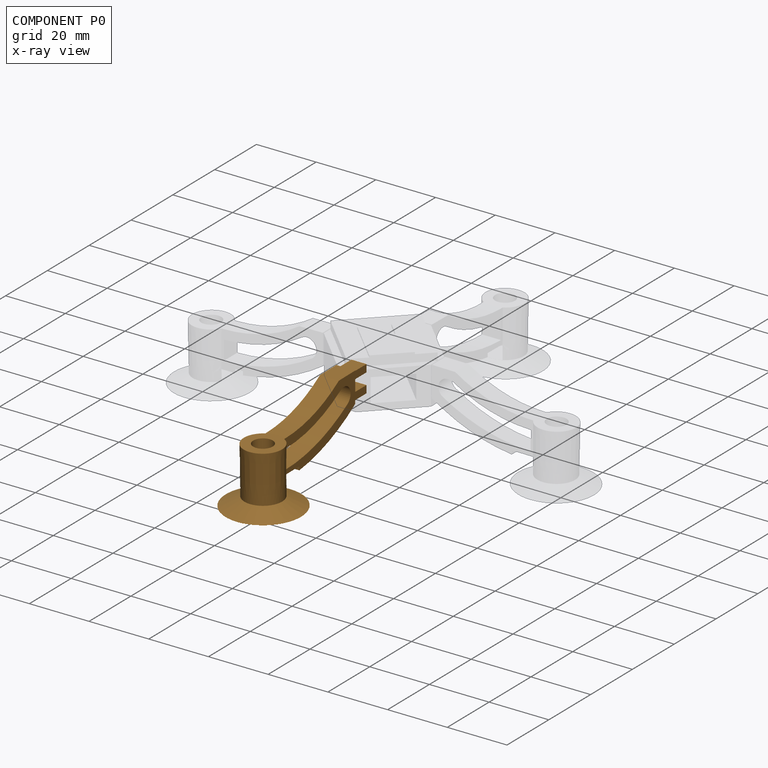
[diagram: component P0 — x-ray view]
COMPONENT P0 — geometry summary (no construction recipe available for this part):
  bounding box: 58.7 x 26.2 x 25.4 mm
  B-rep topology: 1 solid, 34 faces, 176 edges
  volume: 3868 mm^3 (10% of its bounding box)
  symmetry: mirror-symmetric across its y mid-plane
Held by: FASTENED mate "Fastened 4" to P3.
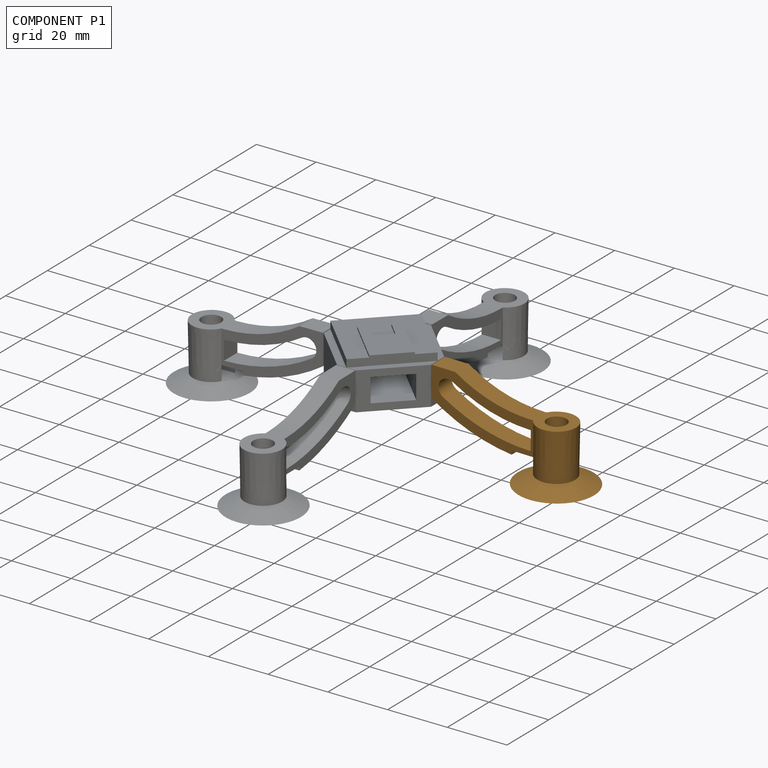
[diagram: component P1 — assembled]
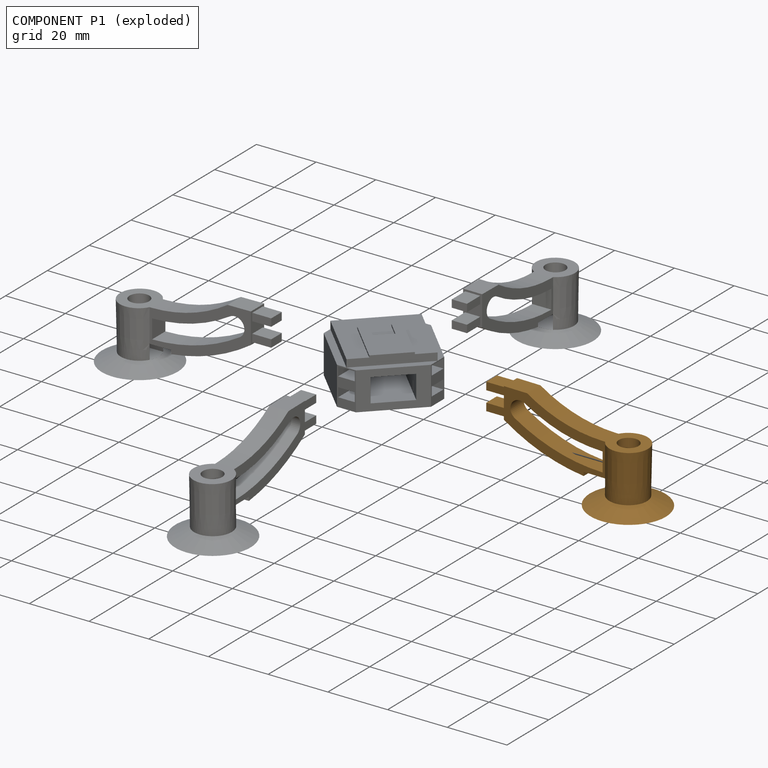
[diagram: component P1 — exploded]
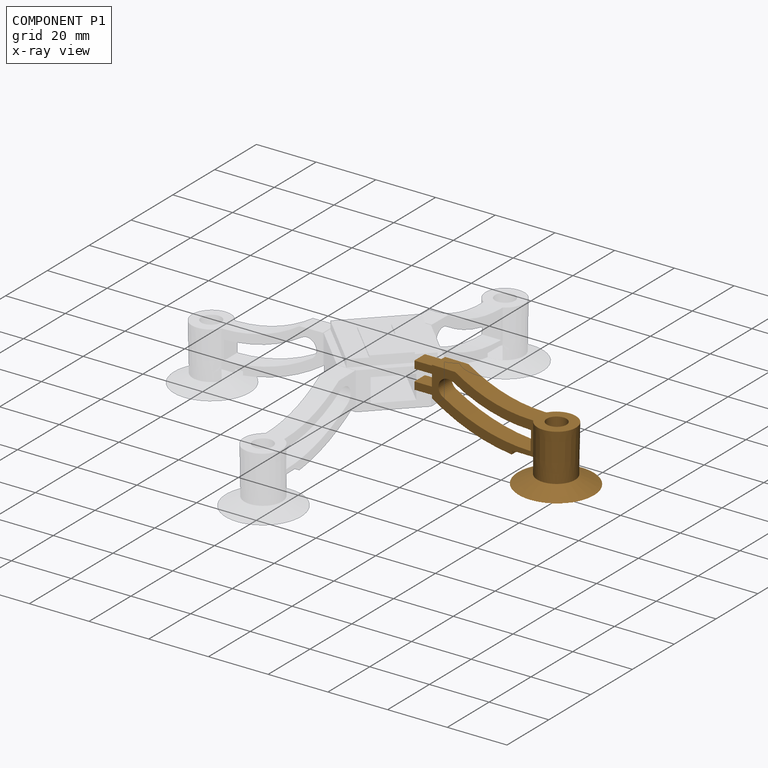
[diagram: component P1 — x-ray view]
COMPONENT P1 — geometry summary (no construction recipe available for this part):
  bounding box: 58.7 x 26.2 x 25.4 mm
  B-rep topology: 1 solid, 34 faces, 176 edges
  volume: 3868 mm^3 (10% of its bounding box)
  symmetry: mirror-symmetric across its y mid-plane
Held by: FASTENED mate "Fastened 3" to P3.
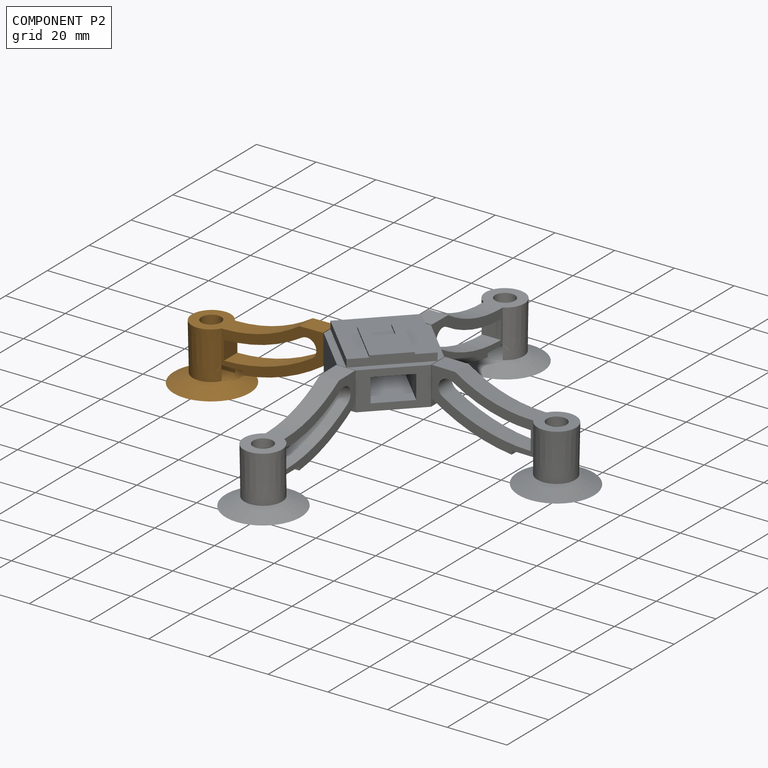
[diagram: component P2 — assembled]
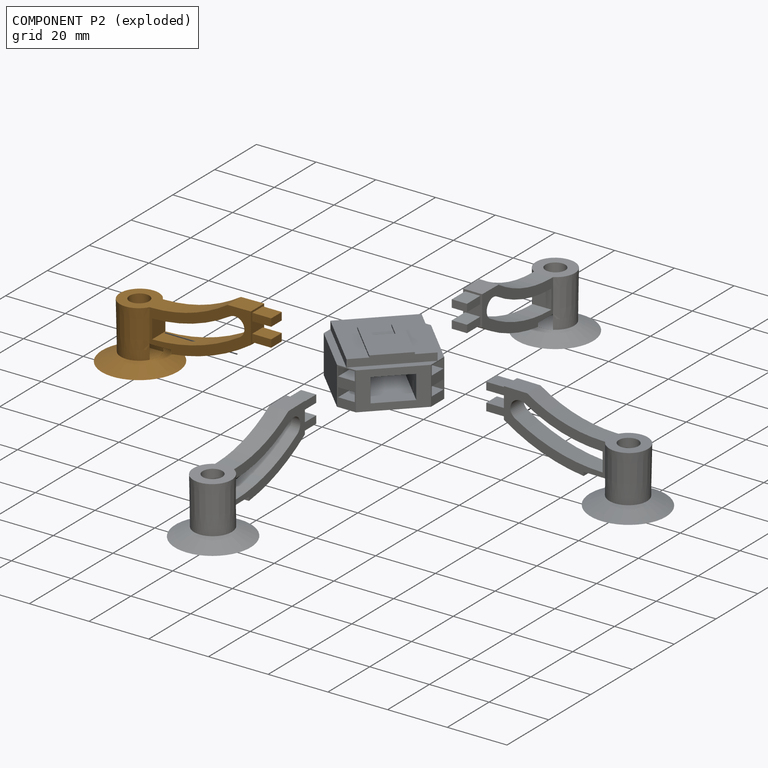
[diagram: component P2 — exploded]
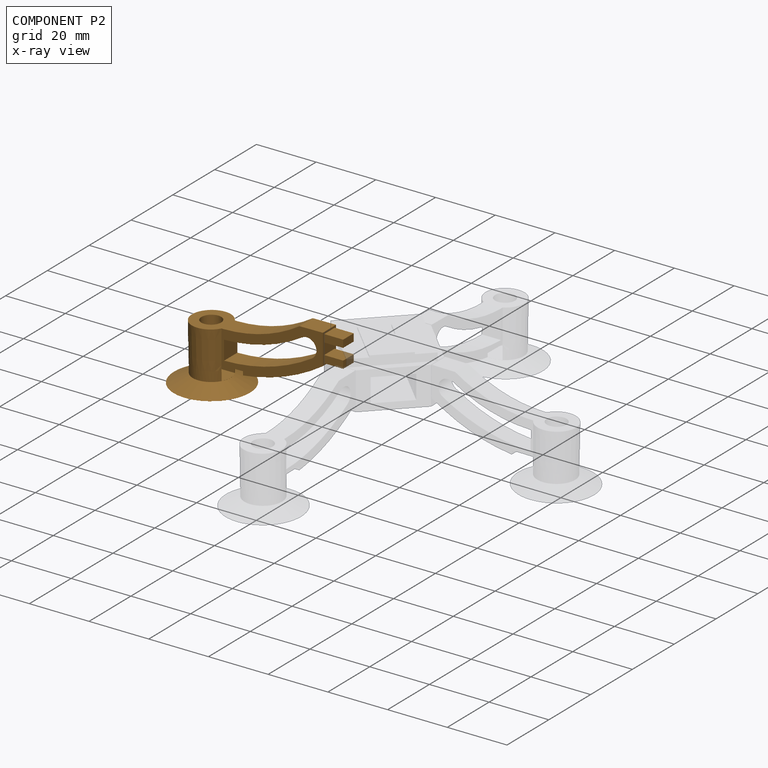
[diagram: component P2 — x-ray view]
COMPONENT P2 — geometry summary (no construction recipe available for this part):
  bounding box: 58.7 x 26.2 x 25.4 mm
  B-rep topology: 1 solid, 34 faces, 176 edges
  volume: 3868 mm^3 (10% of its bounding box)
  symmetry: mirror-symmetric across its y mid-plane
Held by: FASTENED mate "Fastened 1" to P3.
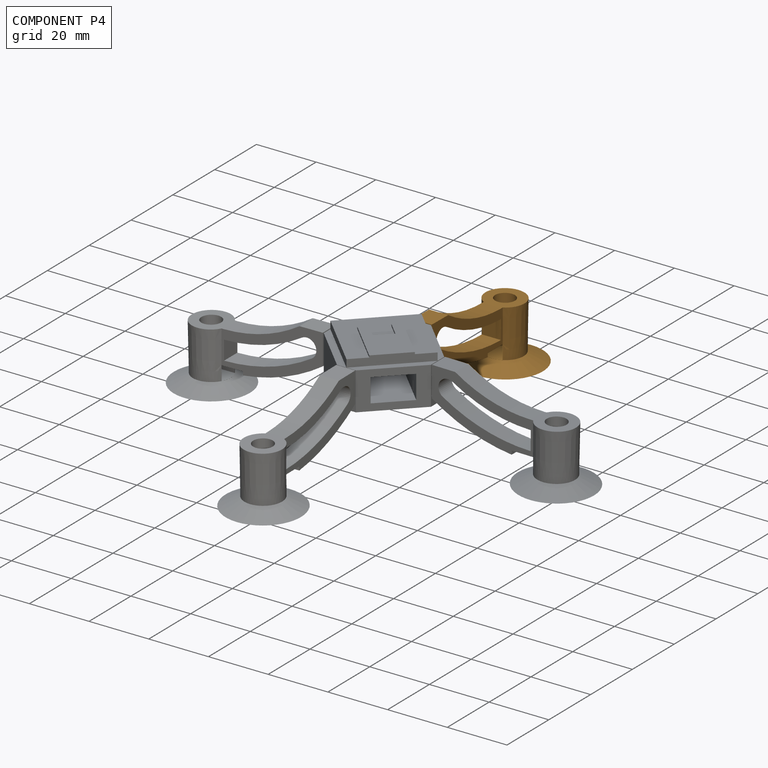
[diagram: component P4 — assembled]
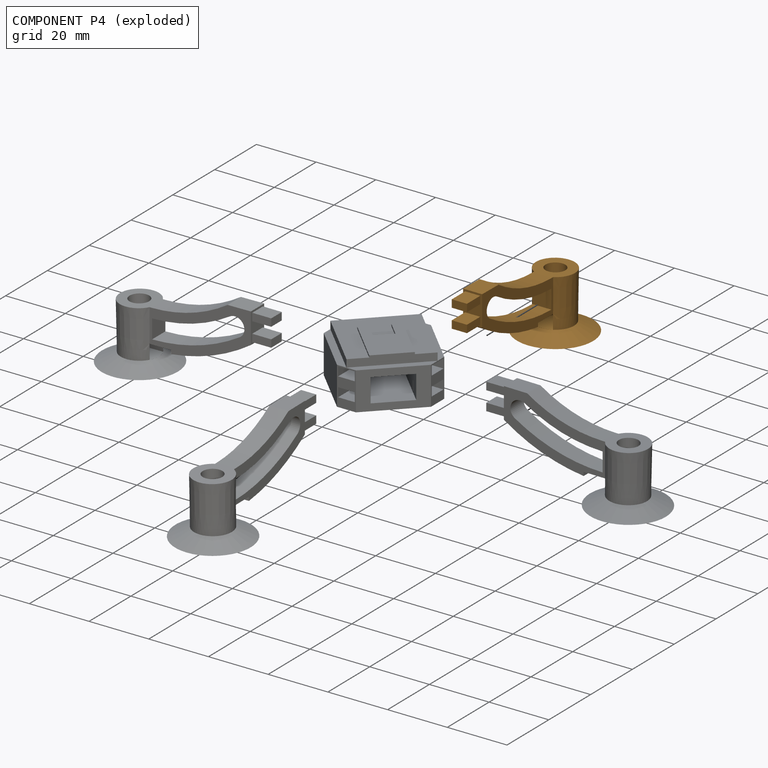
[diagram: component P4 — exploded]
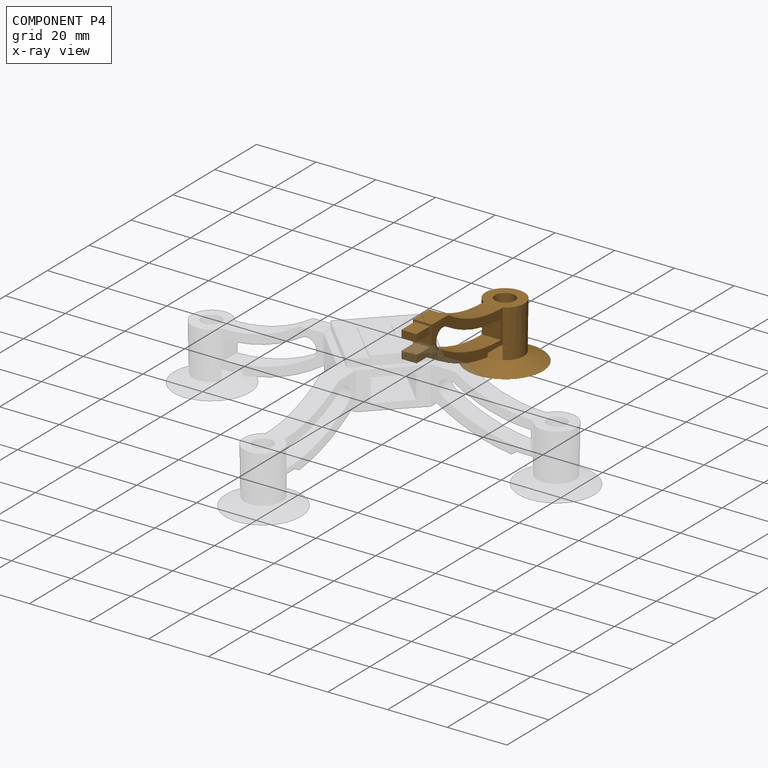
[diagram: component P4 — x-ray view]
COMPONENT P4 — geometry summary (no construction recipe available for this part):
  bounding box: 58.7 x 26.2 x 25.4 mm
  B-rep topology: 1 solid, 34 faces, 176 edges
  volume: 3868 mm^3 (10% of its bounding box)
  symmetry: mirror-symmetric across its y mid-plane
Held by: FASTENED mate "Fastened 2" to P3.
PROVENANCE & LICENSES
Assembly (occurrences, transforms, mates, per-part STEP geometry): AutoMate dataset, Zenodo record 7776208, CC0.
Construction recipes: CADFS (HuggingFace VladPyatov/CADFS, CC-BY-4.0, layered over the ABC dataset), FeatureScript reconstruction programs keyed by ABC model id.
Join: ABC meta listings map ABC model id -> Onshape documentId; within a shared document, parts are matched by geometric signature (bounding-box dims + volume at 0.1% relative tolerance, exact B-rep face/solid counts).
Verification: 1 of this assembly's 5 components carries a recipe attachment, and every attachment is mesh-verified: the CADFS STEP and the AutoMate member STEP were compared as meshes in their shared local frame (symmetric sampled-point-to-mesh distance); worst across the 1 attachment: below the mesh-comparison resolution (tessellation chordal tolerance ~0.0798 mm) on a 53 mm part.
Renders: orthographic iso camera (az 35 / el 25); the floor grid conveys scale (grid pitch printed in each image; no ruler). In the exploded view each component is displaced by its stored offset vector: the offsets alone carry the explosion direction (mate normal/axis signs are not orientation cues and do not encode it), and separation distances are assigned per mate-chain, not proportionally to assembly-order depth.
